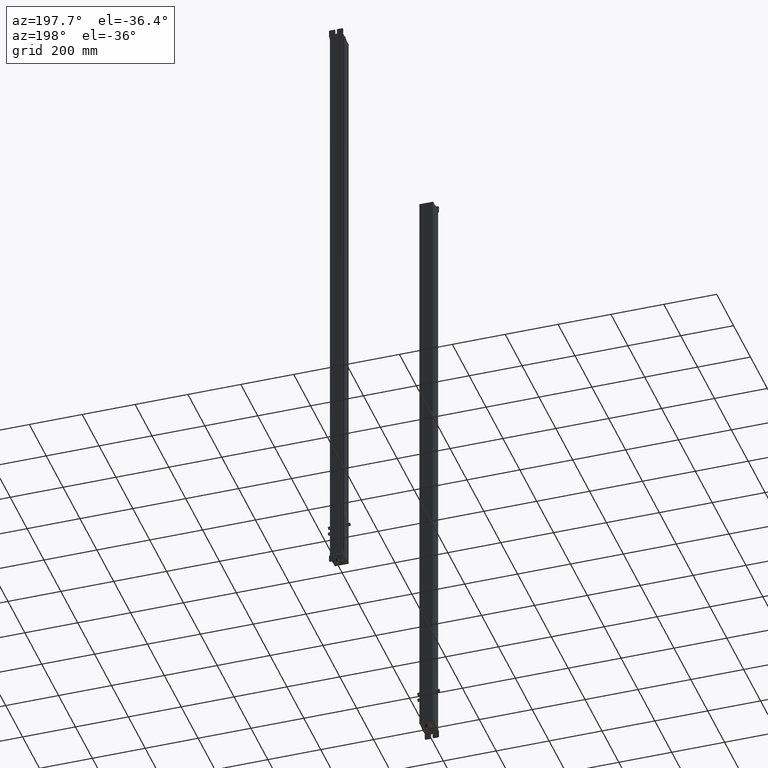
[diagram: clean part render]
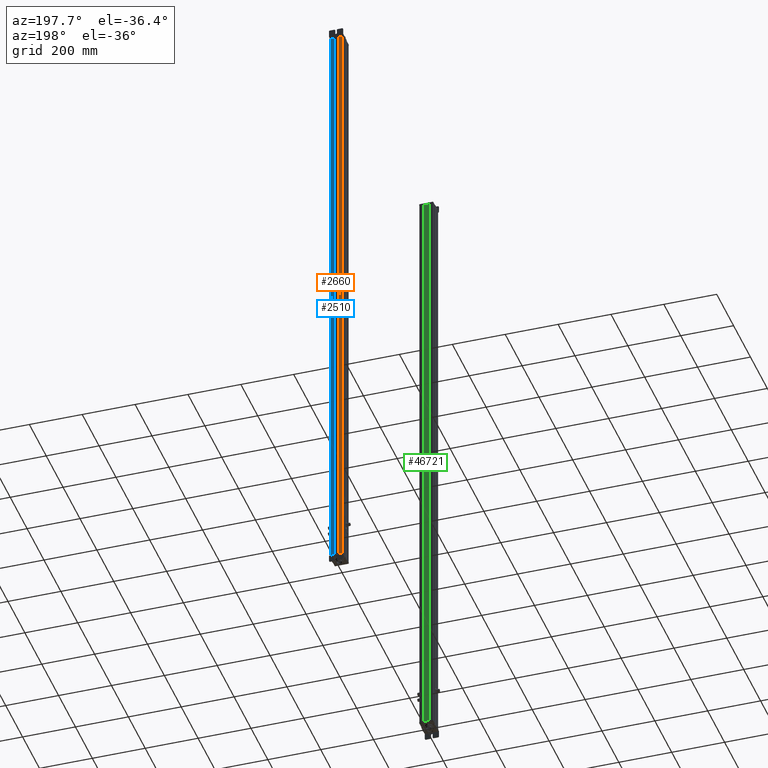
[diagram: same view with three faces highlighted in distinct colors, each labeled with its STEP entity id]
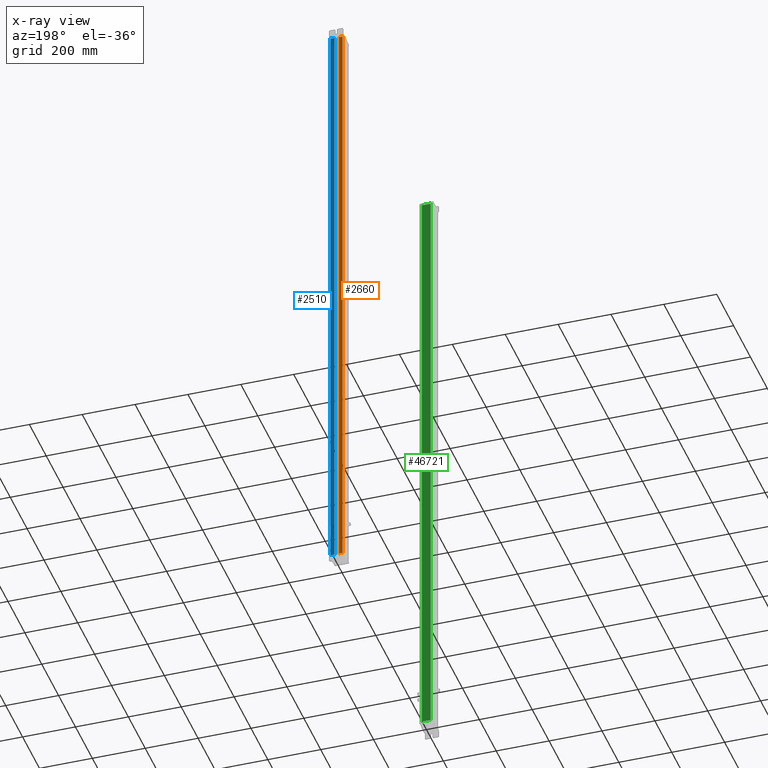
[diagram: x-ray of the same camera — body ghosted, the three highlighted faces saturated]
A machine part, auxiliary view with three faces highlighted in distinct colors.
The next image is the same camera in x-ray (body ghosted, the three faces saturated) — at least one of them is partly hidden behind the body in this view.
Their STEP definitions:

[orange] entity #2660 — the highlighted planar face has unit normal (0, 1, 0).
#2480=CARTESIAN_POINT('Axis2P3D Location',(647.67209889,120.060780121,0.)) ;
#2613=CARTESIAN_POINT('Vertex',(647.67209889,120.060780121,2312.)) ;
#2620=CARTESIAN_POINT('Vertex',(647.67209889,120.060780121,0.)) ;
#2623=CARTESIAN_POINT('Line Origine',(647.67209889,120.060780121,1156.)) ;
#2635=CARTESIAN_POINT('Line Origine',(654.908380451,120.060780121,0.)) ;
#2639=CARTESIAN_POINT('Vertex',(662.144662012,120.060780121,0.)) ;
#2642=CARTESIAN_POINT('Line Origine',(662.144662012,120.060780121,1156.)) ;
#2646=CARTESIAN_POINT('Vertex',(662.144662012,120.060780121,2312.)) ;
#2649=CARTESIAN_POINT('Line Origine',(654.908380451,120.060780121,2312.)) ;
#2481=DIRECTION('Axis2P3D Direction',(0.,-1.,0.)) ;
#2482=DIRECTION('Axis2P3D XDirection',(1.,0.,0.)) ;
#2624=DIRECTION('Vector Direction',(0.,0.,1.)) ;
#2636=DIRECTION('Vector Direction',(1.,0.,0.)) ;
#2643=DIRECTION('Vector Direction',(0.,0.,1.)) ;
#2650=DIRECTION('Vector Direction',(1.,0.,0.)) ;
#2483=AXIS2_PLACEMENT_3D('Plane Axis2P3D',#2480,#2481,#2482) ;
#2655=ORIENTED_EDGE('',*,*,#2627,.F.) ;
#2656=ORIENTED_EDGE('',*,*,#2641,.T.) ;
#2657=ORIENTED_EDGE('',*,*,#2648,.T.) ;
#2658=ORIENTED_EDGE('',*,*,#2653,.F.) ;
#2625=VECTOR('Line Direction',#2624,1.) ;
#2637=VECTOR('Line Direction',#2636,1.) ;
#2644=VECTOR('Line Direction',#2643,1.) ;
#2651=VECTOR('Line Direction',#2650,1.) ;
#2660=ADVANCED_FACE('Body.2',(#2659),#2484,.T.) ;
#2627=EDGE_CURVE('',#2621,#2614,#2626,.T.) ;
#2641=EDGE_CURVE('',#2621,#2640,#2638,.T.) ;
#2648=EDGE_CURVE('',#2640,#2647,#2645,.T.) ;
#2653=EDGE_CURVE('',#2614,#2647,#2652,.T.) ;
#2654=EDGE_LOOP('',(#2655,#2656,#2657,#2658)) ;
#2659=FACE_OUTER_BOUND('',#2654,.T.) ;
#2626=LINE('Line',#2623,#2625) ;
#2638=LINE('Line',#2635,#2637) ;
#2645=LINE('Line',#2642,#2644) ;
#2652=LINE('Line',#2649,#2651) ;
#2484=PLANE('Plane',#2483) ;
#2614=VERTEX_POINT('',#2613) ;
#2621=VERTEX_POINT('',#2620) ;
#2640=VERTEX_POINT('',#2639) ;
#2647=VERTEX_POINT('',#2646) ;

[blue] entity #2510 — the highlighted planar face has unit normal (0, 1, 0).
#2458=CARTESIAN_POINT('Vertex',(617.246770587,120.060780121,0.)) ;
#2461=CARTESIAN_POINT('Line Origine',(617.246770587,120.060780121,1156.)) ;
#2465=CARTESIAN_POINT('Vertex',(617.246770587,120.060780121,2312.)) ;
#2480=CARTESIAN_POINT('Axis2P3D Location',(647.67209889,120.060780121,0.)) ;
#2485=CARTESIAN_POINT('Line Origine',(624.483052148,120.060780121,0.)) ;
#2489=CARTESIAN_POINT('Vertex',(631.719333708,120.060780121,0.)) ;
#2492=CARTESIAN_POINT('Line Origine',(631.719333708,120.060780121,1156.)) ;
#2496=CARTESIAN_POINT('Vertex',(631.719333708,120.060780121,2312.)) ;
#2499=CARTESIAN_POINT('Line Origine',(624.483052148,120.060780121,2312.)) ;
#2462=DIRECTION('Vector Direction',(0.,0.,1.)) ;
#2481=DIRECTION('Axis2P3D Direction',(0.,-1.,0.)) ;
#2482=DIRECTION('Axis2P3D XDirection',(1.,0.,0.)) ;
#2486=DIRECTION('Vector Direction',(1.,0.,0.)) ;
#2493=DIRECTION('Vector Direction',(0.,0.,1.)) ;
#2500=DIRECTION('Vector Direction',(1.,0.,0.)) ;
#2483=AXIS2_PLACEMENT_3D('Plane Axis2P3D',#2480,#2481,#2482) ;
#2505=ORIENTED_EDGE('',*,*,#2467,.F.) ;
#2506=ORIENTED_EDGE('',*,*,#2491,.T.) ;
#2507=ORIENTED_EDGE('',*,*,#2498,.T.) ;
#2508=ORIENTED_EDGE('',*,*,#2503,.F.) ;
#2463=VECTOR('Line Direction',#2462,1.) ;
#2487=VECTOR('Line Direction',#2486,1.) ;
#2494=VECTOR('Line Direction',#2493,1.) ;
#2501=VECTOR('Line Direction',#2500,1.) ;
#2510=ADVANCED_FACE('Body.2',(#2509),#2484,.T.) ;
#2467=EDGE_CURVE('',#2459,#2466,#2464,.T.) ;
#2491=EDGE_CURVE('',#2459,#2490,#2488,.T.) ;
#2498=EDGE_CURVE('',#2490,#2497,#2495,.T.) ;
#2503=EDGE_CURVE('',#2466,#2497,#2502,.T.) ;
#2504=EDGE_LOOP('',(#2505,#2506,#2507,#2508)) ;
#2509=FACE_OUTER_BOUND('',#2504,.T.) ;
#2464=LINE('Line',#2461,#2463) ;
#2488=LINE('Line',#2485,#2487) ;
#2495=LINE('Line',#2492,#2494) ;
#2502=LINE('Line',#2499,#2501) ;
#2484=PLANE('Plane',#2483) ;
#2459=VERTEX_POINT('',#2458) ;
#2466=VERTEX_POINT('',#2465) ;
#2490=VERTEX_POINT('',#2489) ;
#2497=VERTEX_POINT('',#2496) ;

[green] entity #46721 — the highlighted planar face has unit normal (0, 1, 0).
#46638=CARTESIAN_POINT('Vertex',(622.718933105,180.560203323,0.)) ;
#46641=CARTESIAN_POINT('Line Origine',(639.443450928,180.560203323,0.)) ;
#46645=CARTESIAN_POINT('Vertex',(656.16796875,180.560203323,0.)) ;
#46678=CARTESIAN_POINT('Vertex',(622.718933105,180.560203323,2312.)) ;
#46681=CARTESIAN_POINT('Line Origine',(622.718933105,180.560203323,1156.)) ;
#46698=CARTESIAN_POINT('Axis2P3D Location',(656.16796875,180.560203323,0.)) ;
#46703=CARTESIAN_POINT('Line Origine',(656.16796875,180.560203323,1156.)) ;
#46707=CARTESIAN_POINT('Vertex',(656.16796875,180.560203323,2312.)) ;
#46710=CARTESIAN_POINT('Line Origine',(639.443450928,180.560203323,2312.)) ;
#46642=DIRECTION('Vector Direction',(-1.,0.,0.)) ;
#46682=DIRECTION('Vector Direction',(0.,0.,1.)) ;
#46699=DIRECTION('Axis2P3D Direction',(-0.,1.,0.)) ;
#46700=DIRECTION('Axis2P3D XDirection',(-1.,-0.,0.)) ;
#46704=DIRECTION('Vector Direction',(0.,0.,1.)) ;
#46711=DIRECTION('Vector Direction',(-1.,0.,0.)) ;
#46701=AXIS2_PLACEMENT_3D('Plane Axis2P3D',#46698,#46699,#46700) ;
#46716=ORIENTED_EDGE('',*,*,#46709,.F.) ;
#46717=ORIENTED_EDGE('',*,*,#46647,.F.) ;
#46718=ORIENTED_EDGE('',*,*,#46685,.T.) ;
#46719=ORIENTED_EDGE('',*,*,#46714,.F.) ;
#46643=VECTOR('Line Direction',#46642,1.) ;
#46683=VECTOR('Line Direction',#46682,1.) ;
#46705=VECTOR('Line Direction',#46704,1.) ;
#46712=VECTOR('Line Direction',#46711,1.) ;
#46721=ADVANCED_FACE('Body.3',(#46720),#46702,.T.) ;
#46647=EDGE_CURVE('',#46639,#46646,#46644,.F.) ;
#46685=EDGE_CURVE('',#46639,#46679,#46684,.T.) ;
#46709=EDGE_CURVE('',#46646,#46708,#46706,.T.) ;
#46714=EDGE_CURVE('',#46708,#46679,#46713,.T.) ;
#46715=EDGE_LOOP('',(#46716,#46717,#46718,#46719)) ;
#46720=FACE_OUTER_BOUND('',#46715,.T.) ;
#46644=LINE('Line',#46641,#46643) ;
#46684=LINE('Line',#46681,#46683) ;
#46706=LINE('Line',#46703,#46705) ;
#46713=LINE('Line',#46710,#46712) ;
#46702=PLANE('Plane',#46701) ;
#46639=VERTEX_POINT('',#46638) ;
#46646=VERTEX_POINT('',#46645) ;
#46679=VERTEX_POINT('',#46678) ;
#46708=VERTEX_POINT('',#46707) ;